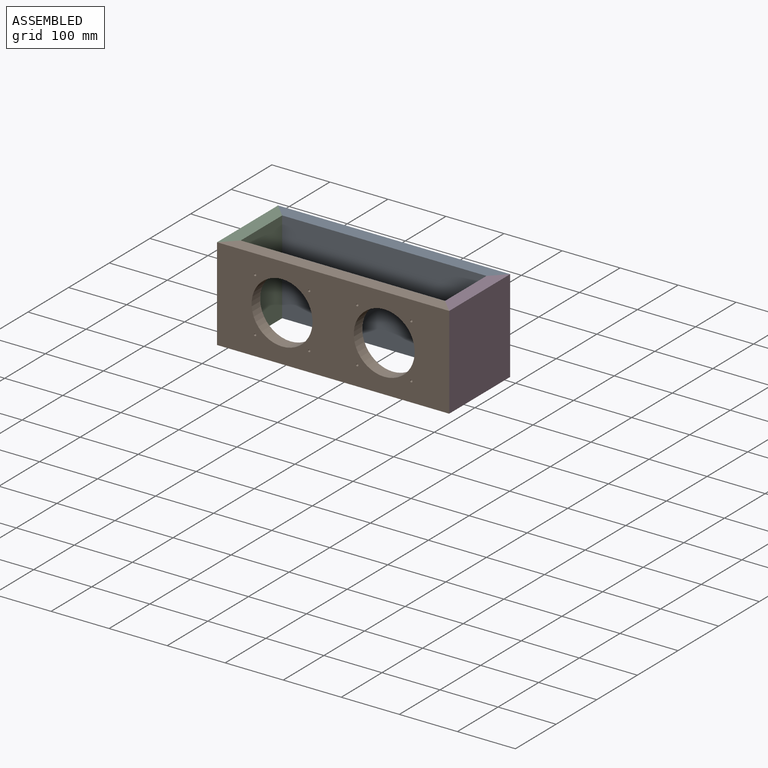
[diagram: assembled view]
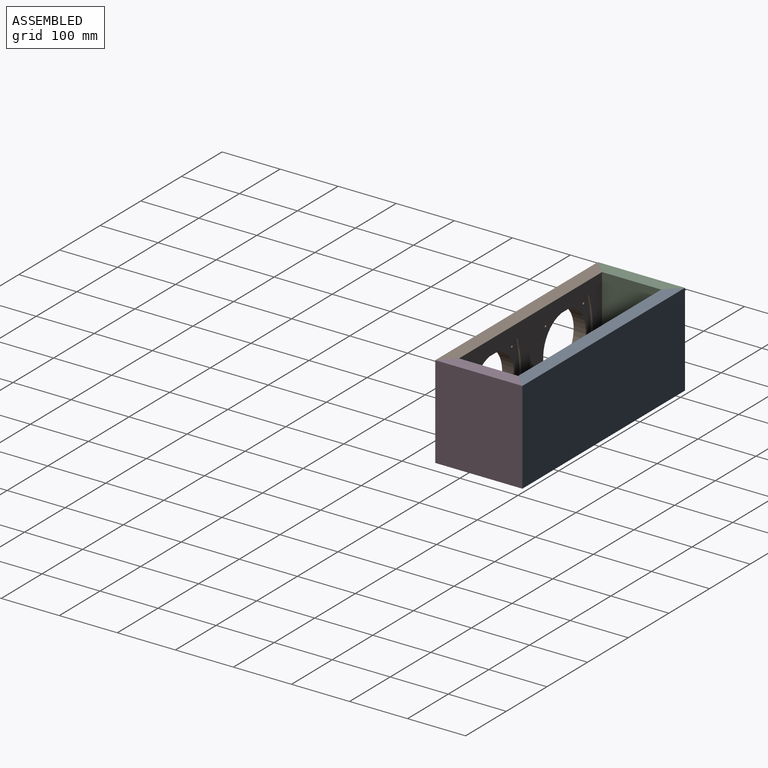
[diagram: assembled view, second angle]
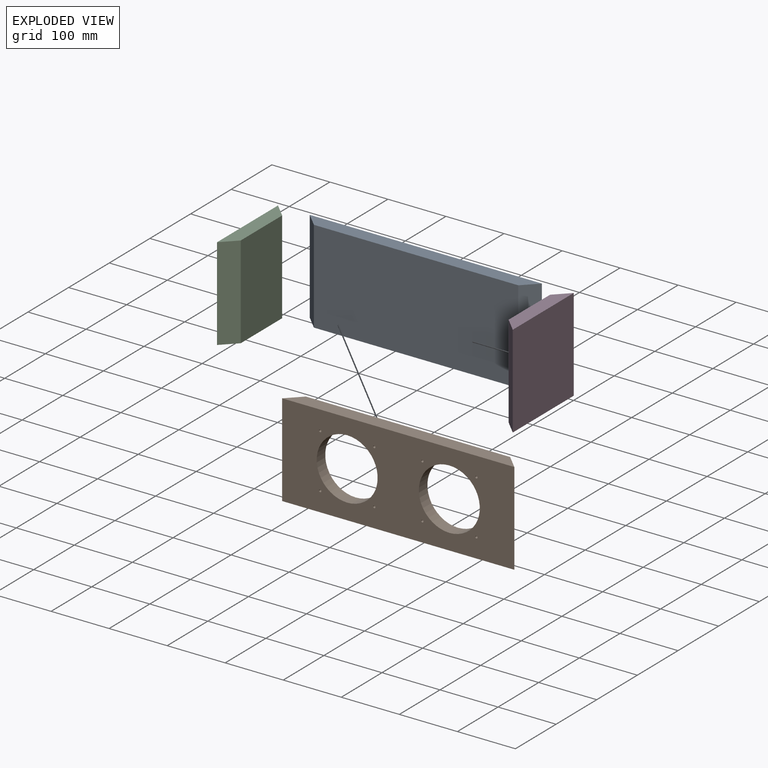
[diagram: exploded view]
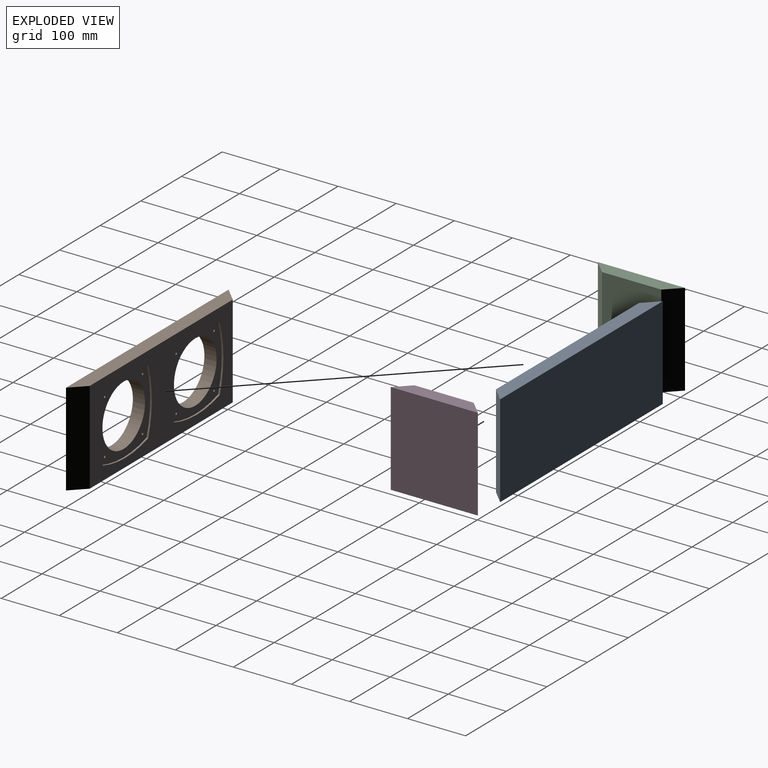
[diagram: exploded view, second angle]
ASSEMBLY  parts=4 mates=3
PART A: 6 faces, bbox 400x24x160 mm
  f0: plane 400x24mm, normal (0,0,1), area 9024mm2, adj f1,f3,f4,f5
  f1: plane 352x160mm, normal (0,-1,0), area 56320mm2, adj f0,f2,f4,f5
  f2: plane 400x24mm, normal (0,0,-1), area 9024mm2, adj f1,f3,f4,f5
  f3: plane 400x160mm, normal (0,1,0), area 64000mm2, adj f0,f2,f4,f5
  f4: plane 160x24mm, normal (0.71,-0.71,0), area 5430.6mm2, adj f0,f1,f2,f3
  f5: plane 160x24mm, normal (-0.71,-0.71,0), area 5430.6mm2, adj f0,f1,f2,f3
PART B: 28 faces, bbox 400x24x160 mm
  f0: plane 352x160mm, normal (0,-1,0), area 25633mm2, adj f1,f2,f4,f5,f6,f7,f8,f9
  f1: plane 400x24mm, normal (0,0,1), area 9024mm2, adj f0,f3,f4,f5
  f2: plane 400x24mm, normal (0,0,-1), area 9024mm2, adj f0,f3,f4,f5
  f3: plane 400x160mm, normal (0,1,0), area 46581.4mm2, adj f1,f2,f4,f5,f18,f19,f20,f21
  f4: plane 160x24mm, normal (0.71,-0.71,0), area 5430.6mm2, adj f0,f1,f2,f3
  f5: plane 160x24mm, normal (-0.71,-0.71,0), area 5430.6mm2, adj f0,f1,f2,f3
  f6: cylinder r=175.99mm len=112.17mm, axis (0,-1,0), area 342.5mm2, adj f0,f7,f9,f10
  f7: cylinder r=182.04mm len=112.53mm, axis (0,-1,0), area 343.2mm2, adj f0,f6,f8,f10
  f8: cylinder r=175.99mm len=112.17mm, axis (0,-1,0), area 342.5mm2, adj f0,f7,f9,f10
  f9: cylinder r=182.04mm len=112.53mm, axis (0,-1,0), area 343.2mm2, adj f0,f6,f8,f10
  f10: plane 130.89x130mm, normal (0,-1,0), area 6637.9mm2, adj f6,f7,f8,f9,f19,f24,f25,f26
  f11: cylinder r=175.99mm len=43.6mm, axis (0,-1,0), area 133.7mm2, adj f0,f12,f16,f17
  f12: cylinder r=182.04mm len=112.53mm, axis (0,-1,0), area 343.2mm2, adj f0,f11,f13,f17
  f13: cylinder r=175.99mm len=112.17mm, axis (0,-1,0), area 342.5mm2, adj f0,f12,f14,f17
  f14: cylinder r=182.04mm len=112.53mm, axis (0,-1,0), area 343.2mm2, adj f0,f13,f15,f17
  f15: cylinder r=175.99mm len=43.6mm, axis (0,-1,0), area 133.7mm2, adj f0,f14,f16,f17
  f16: plane 24.98x3mm, normal (0,0,-1), area 74.9mm2, adj f0,f11,f15,f17
  f17: plane 130.44x130mm, normal (0,-1,0), area 6630.5mm2, adj f11,f12,f13,f14,f15,f16,f18,f20
  f18: cylinder r=52.5mm len=105mm, axis (0,-1,0), area 6927.2mm2, adj f3,f17
  f19: cylinder r=52.5mm len=105mm, axis (0,-1,0), area 6927.2mm2, adj f3,f10
  f20: cylinder r=2mm len=21mm, axis (0,-1,0), area 263.9mm2, adj f3,f17
  f21: cylinder r=2mm len=21mm, axis (0,-1,0), area 263.9mm2, adj f3,f17
  f22: cylinder r=2mm len=21mm, axis (0,-1,0), area 263.9mm2, adj f3,f17
  f23: cylinder r=2mm len=21mm, axis (0,-1,0), area 263.9mm2, adj f3,f17
  f24: cylinder r=2mm len=21mm, axis (0,-1,0), area 263.9mm2, adj f3,f10
  f25: cylinder r=2mm len=21mm, axis (0,-1,0), area 263.9mm2, adj f3,f10
  f26: cylinder r=2mm len=21mm, axis (0,-1,0), area 263.9mm2, adj f3,f10
  f27: cylinder r=2mm len=21mm, axis (0,-1,0), area 263.9mm2, adj f3,f10
PART C: 6 faces, bbox 150x24x160 mm
  f0: plane 150x24mm, normal (0,0,1), area 3024mm2, adj f1,f3,f4,f5
  f1: plane 160x102mm, normal (0,-1,0), area 16320mm2, adj f0,f2,f4,f5
  f2: plane 150x24mm, normal (0,0,-1), area 3024mm2, adj f1,f3,f4,f5
  f3: plane 160x150mm, normal (0,1,0), area 24000mm2, adj f0,f2,f4,f5
  f4: plane 160x24mm, normal (0.71,-0.71,0), area 5430.6mm2, adj f0,f1,f2,f3
  f5: plane 160x24mm, normal (-0.71,-0.71,0), area 5430.6mm2, adj f0,f1,f2,f3
PART D: same geometry as C
PLACE A rot(axis=(-0.11,-0.13,0.99),0deg) t=(-209.79,-99.2,-156.9)mm
PLACE B rot(axis=(0,0,1),180deg) t=(-209.79,-249.2,-156.9)mm
PLACE C rot(axis=(0,0,1),90deg) t=(-409.79,-174.2,-156.9)mm
PLACE D rot(axis=(0,0,-1),90deg) t=(-9.79,-174.2,-156.9)mm
MATE fastened C.f5 <-> B.f4  axis (0.71,-0.71,0) through (-409.79,-249.2,-156.9)mm
MATE fastened A.f5 <-> C.f4  axis (-0.71,-0.71,0) through (-409.79,-99.2,-156.9)mm
MATE fastened A.f4 <-> D.f5  axis (0.71,-0.71,0) through (-9.79,-99.2,-156.9)mm
